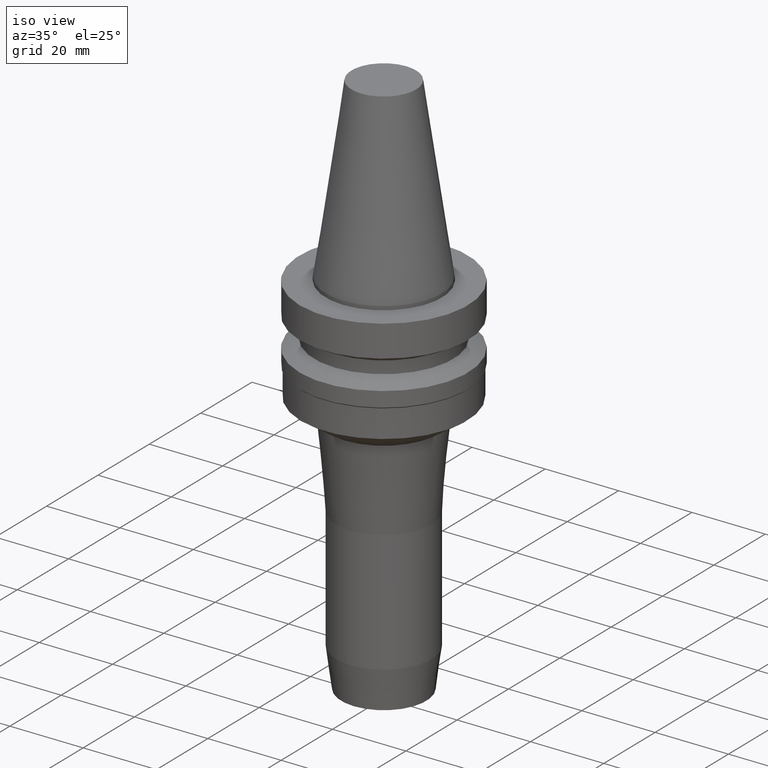
[diagram: clean part render]
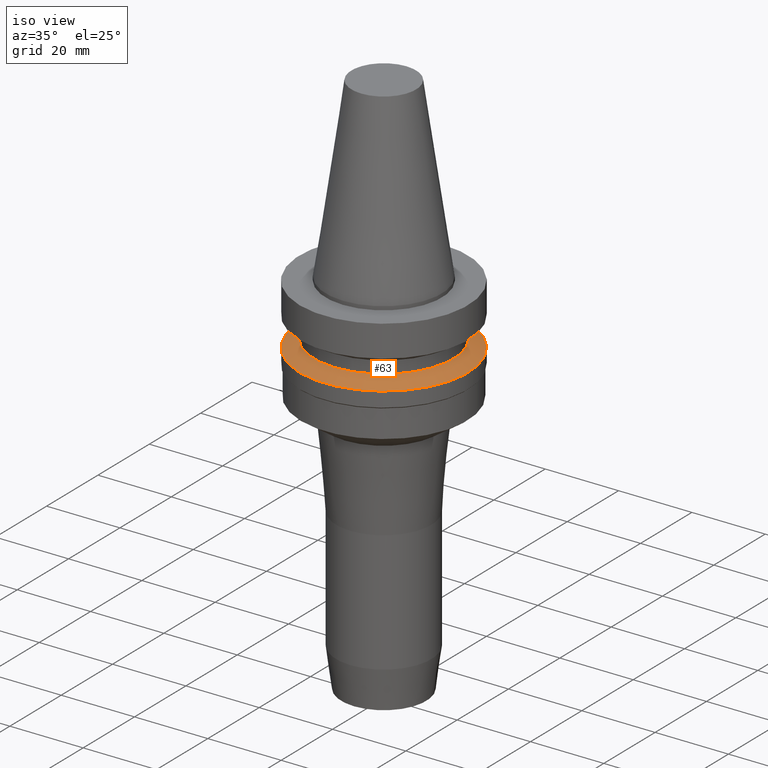
[diagram: same view with one face highlighted and labeled with its STEP entity id]
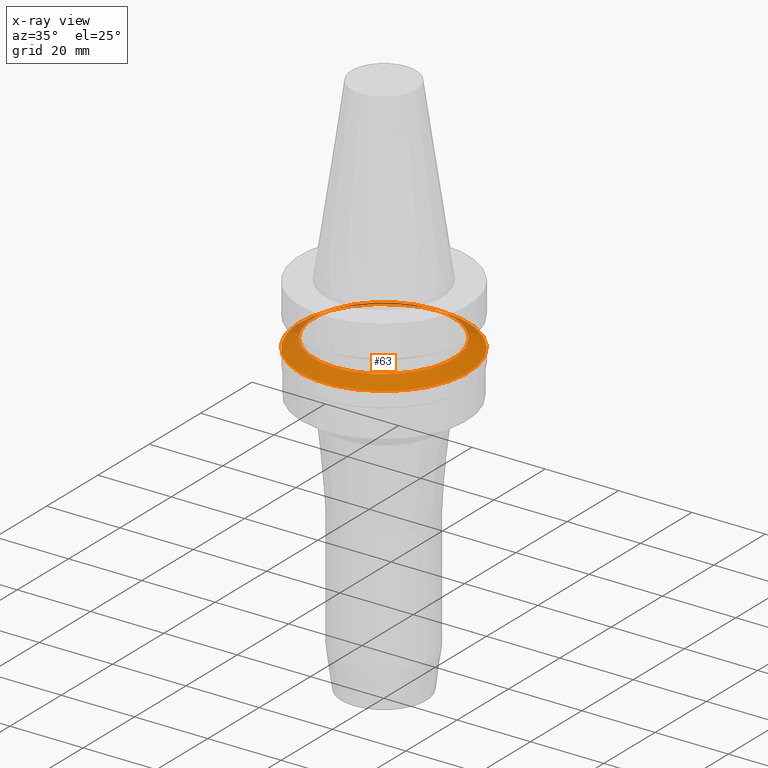
[diagram: x-ray of the same camera — body ghosted, the highlighted face saturated]
A machine part, iso view. The second image highlights one B-rep face of the part: STEP entity #63.
The next image is the same camera in x-ray: the body ghosted, the highlighted face saturated — about 9% of this face is hidden behind the body in this view.
In plain terms, the highlighted conical surface has half-angle 60 deg.
Its self-contained STEP definition (entity closure, byte-faithful):
#63=ADVANCED_FACE('Unnamed[1]',(#163,#164),#165,.T.);
#67=EDGE_CURVE('Unnamed[1]',#170,#170,#171,.T.);
#77=EDGE_CURVE('Unnamed[1]',#186,#186,#187,.T.);
#163=FACE_BOUND('',#299,.T.);
#164=FACE_BOUND('',#300,.T.);
#165=CONICAL_SURFACE('',#301,21.0,1.04719755058882);
#170=VERTEX_POINT('',#308);
#171=CIRCLE('',#309,19.0);
#186=VERTEX_POINT('',#328);
#187=CIRCLE('',#329,23.0);
#299=EDGE_LOOP('',(#452));
#300=EDGE_LOOP('',(#453));
#301=AXIS2_PLACEMENT_3D('',#454,#455,#456);
#308=CARTESIAN_POINT('',(9.36279151221199E-016,19.0,-15.29059892));
#309=AXIS2_PLACEMENT_3D('',#460,#461,#462);
#328=CARTESIAN_POINT('',(1.07768918324967E-015,23.0,-17.6));
#329=AXIS2_PLACEMENT_3D('',#478,#479,#480);
#452=ORIENTED_EDGE('',*,*,#77,.F.);
#453=ORIENTED_EDGE('',*,*,#67,.T.);
#454=CARTESIAN_POINT('',(1.00698416723543E-015,2.01396833447087E-015,-16.44529946));
#455=DIRECTION('',(6.12323399573677E-017,1.22464679914735E-016,-1.0));
#456=DIRECTION('',(-1.23259516440783E-032,1.0,1.22464679914735E-016));
#460=CARTESIAN_POINT('',(9.36279151221199E-016,1.8725583024424E-015,-15.29059892));
#461=DIRECTION('',(6.12323399573677E-017,1.22464679914735E-016,-1.0));
#462=DIRECTION('',(-1.23259516440783E-032,1.0,1.22464679914735E-016));
#478=CARTESIAN_POINT('',(1.07768918324967E-015,2.15537836649934E-015,-17.6));
#479=DIRECTION('',(6.12323399573677E-017,1.22464679914735E-016,-1.0));
#480=DIRECTION('',(-1.23259516440783E-032,1.0,1.22464679914735E-016));